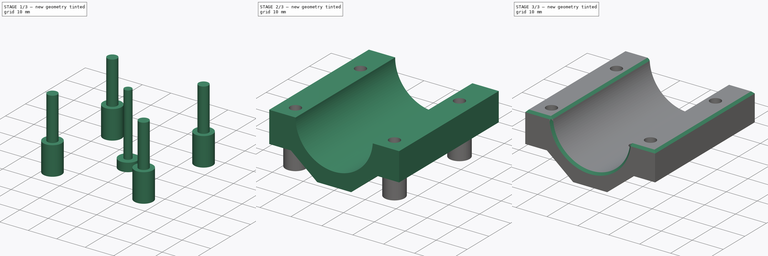
[diagram: build sequence overview — one tinted view per stage of 3, left to right]
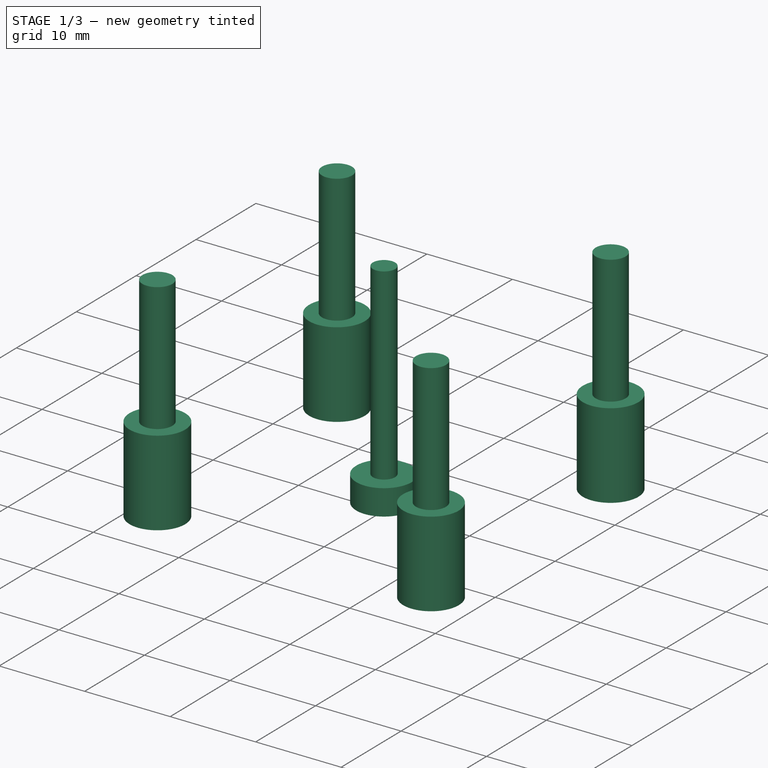
[diagram: stage 1 of 3 — iso view after this stage's code; geometry added in this stage tinted green]
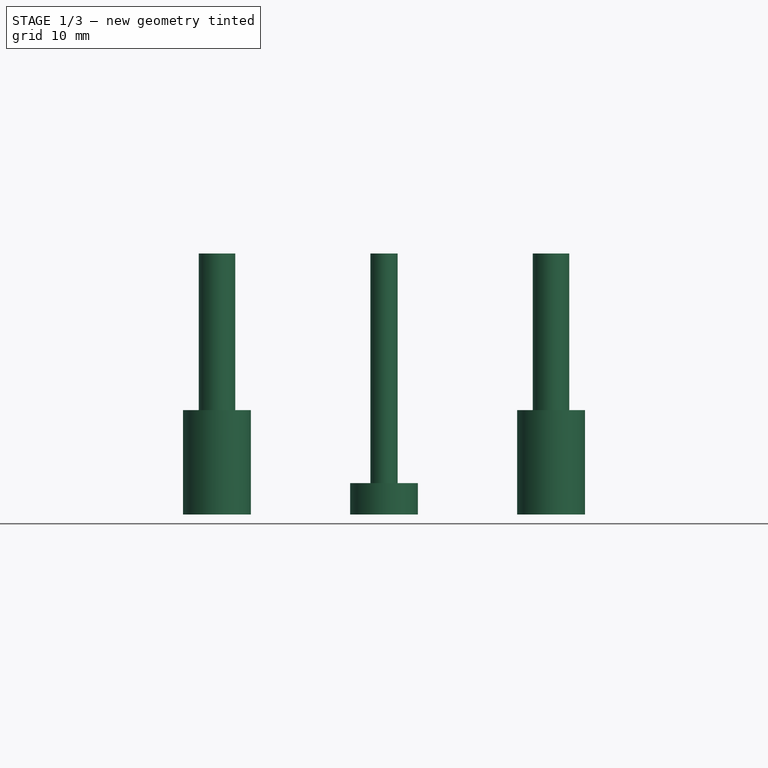
[diagram: stage 1 of 3 — front view after this stage's code; geometry added in this stage tinted green]
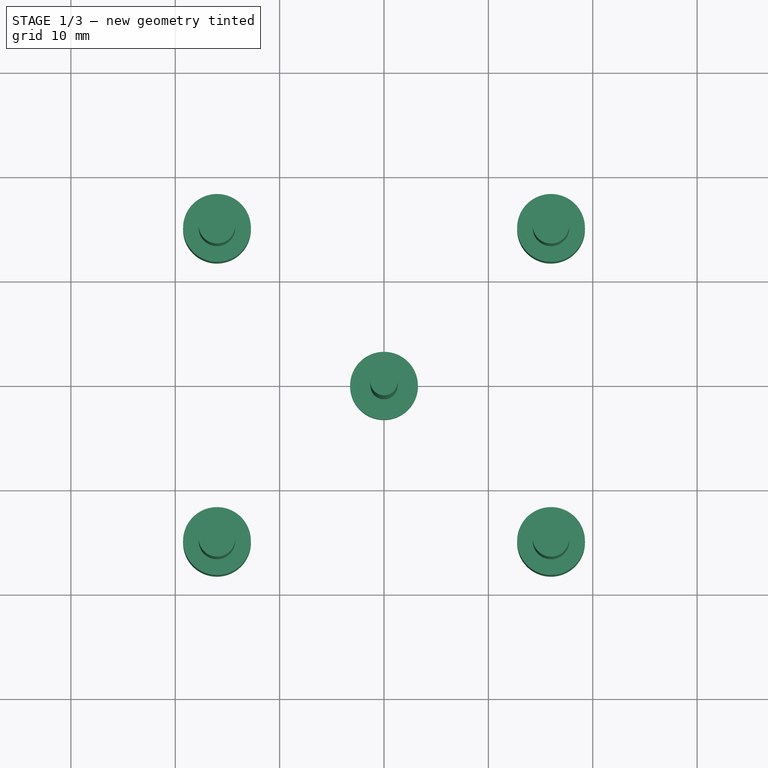
[diagram: stage 1 of 3 — top view after this stage's code; geometry added in this stage tinted green]
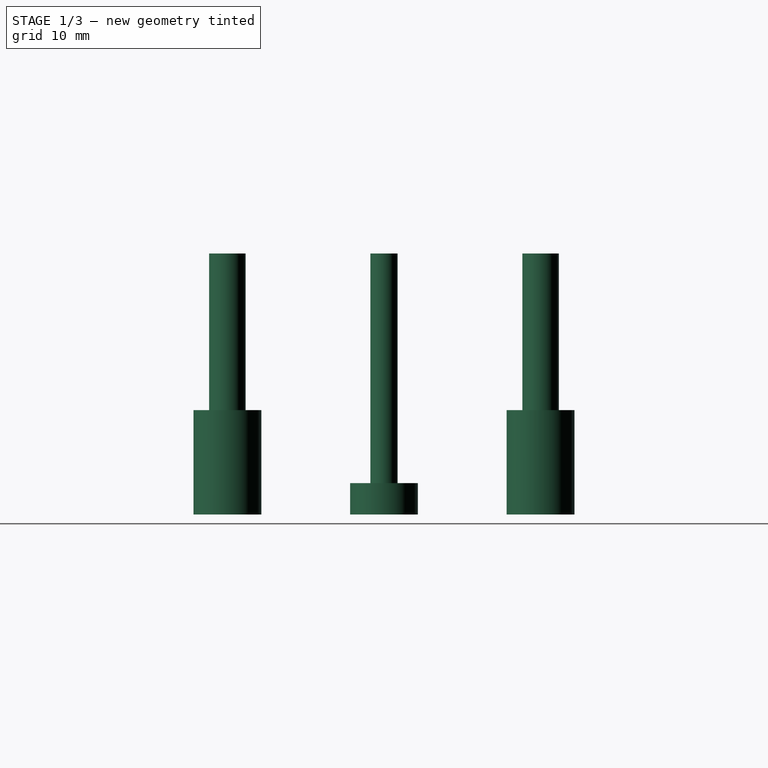
[diagram: stage 1 of 3 — right view after this stage's code; geometry added in this stage tinted green]
FCSTD DOCUMENT  (FreeCAD 0.16R6698 (Git))
Label: motor_mount_bottom
License: All rights reserved
LicenseURL: http://en.wikipedia.org/wiki/All_rights_reserved
objects: Sketcher::SketchObject×4, Part::Extrusion×4, Part::Cut×3, Part::Chamfer×1
note: 12 computed .brp shape members not serialized (recipe doc carries the construction recipe); baked Part::Feature solids carry a one-line shape summary decoded from their .brp

FEATURE [Part::Extrusion] Extrude001
  Base = -> Sketch007
  Dir = (0,0,25)
  Solid = true
FEATURE [Sketcher::SketchObject] Sketch008
  sketch-geometry (8):
    g0: LineSegment [constr] StartX=-16 StartY=35 StartZ=0 EndX=16 EndY=35 EndZ=0
    g1: LineSegment [constr] StartX=16 StartY=35 StartZ=0 EndX=16 EndY=5 EndZ=0
    g2: LineSegment [constr] StartX=16 StartY=5 StartZ=0 EndX=-16 EndY=5 EndZ=0
    g3: LineSegment [constr] StartX=-16 StartY=5 StartZ=0 EndX=-16 EndY=35 EndZ=0
    g4: Circle CenterX=-16 CenterY=5 CenterZ=0 NormalX=0 NormalY=0 NormalZ=1 Radius=3.25
    g5: Circle CenterX=16 CenterY=5 CenterZ=0 NormalX=0 NormalY=0 NormalZ=1 Radius=3.25
    g6: Circle CenterX=-16 CenterY=35 CenterZ=0 NormalX=0 NormalY=0 NormalZ=1 Radius=3.25
    g7: Circle CenterX=16 CenterY=35 CenterZ=0 NormalX=0 NormalY=0 NormalZ=1 Radius=3.25
  constraints (20):
    c: Coincident(g0,g1)
    c: Coincident(g1,g2)
    c: Coincident(g2,g3)
    c: Coincident(g3,g0)
    c: Horizontal(g0)
    c: Horizontal(g2)
    c: Vertical(g1)
    c: Vertical(g3)
    c: Symmetric(g2,g1,g-2)
    c: DistanceY(g1,g1) = 30
    c: DistanceX(g0,g0) = 32
    c: DistanceY(g-1,g1) = 5
    c: Coincident(g5,g1)
    c: Coincident(g6,g0)
    c: Coincident(g7,g0)
    c: Equal(g6,g4)
    c: Equal(g4,g5)
    c: Equal(g5,g7)
    c: Radius(g4) = 3.25
    c: Coincident(g4,g2)
FEATURE [Part::Extrusion] Extrude002
  Base = -> Sketch008
  Dir = (0,0,10)
  Solid = true
FEATURE [Sketcher::SketchObject] Sketch009
  sketch-geometry (7):
    g0: LineSegment [constr] StartX=-16 StartY=35 StartZ=0 EndX=16 EndY=35 EndZ=0
    g1: LineSegment [constr] StartX=16 StartY=35 StartZ=0 EndX=16 EndY=5 EndZ=0
    g2: LineSegment [constr] StartX=16 StartY=5 StartZ=0 EndX=-16 EndY=5 EndZ=0
    g3: LineSegment [constr] StartX=-16 StartY=5 StartZ=0 EndX=-16 EndY=35 EndZ=0
    g4: Circle CenterX=0 CenterY=20 CenterZ=0 NormalX=0 NormalY=0 NormalZ=1 Radius=3.25
    g5: LineSegment [constr] StartX=16 StartY=35 StartZ=0 EndX=0 EndY=20 EndZ=0
    g6: LineSegment [constr] StartX=0 StartY=20 StartZ=0 EndX=16 EndY=5 EndZ=0
  constraints (19):
    c: Coincident(g0,g1)
    c: Coincident(g1,g2)
    c: Coincident(g2,g3)
    c: Coincident(g3,g0)
    c: Horizontal(g0)
    c: Horizontal(g2)
    c: Vertical(g1)
    c: Vertical(g3)
    c: Symmetric(g2,g1,g-2)
    c: DistanceY(g1,g1) = 30
    c: DistanceX(g0,g0) = 32
    c: DistanceY(g-1,g1) = 5
    c: PointOnObject(g4,g-2)
    c: Coincident(g0,g5)
    c: Coincident(g5,g4)
    c: Coincident(g5,g6)
    c: Coincident(g6,g1)
    c: Equal(g6,g5)
    c: Radius(g4) = 3.25
FEATURE [Part::Extrusion] Extrude003
  Base = -> Sketch009
  Dir = (0,0,3)
  Solid = true
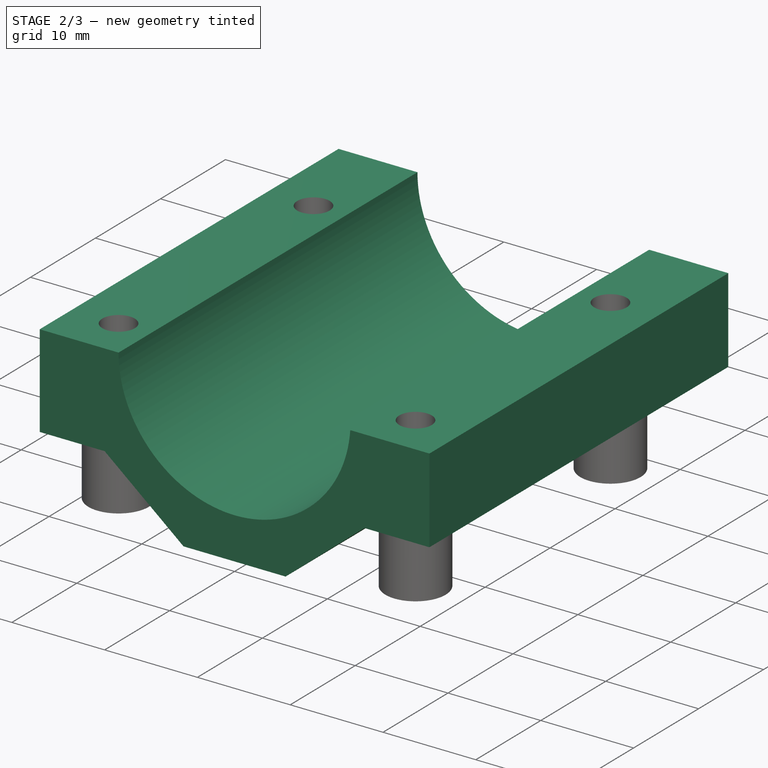
[diagram: stage 2 of 3 — iso view after this stage's code; geometry added in this stage tinted green]
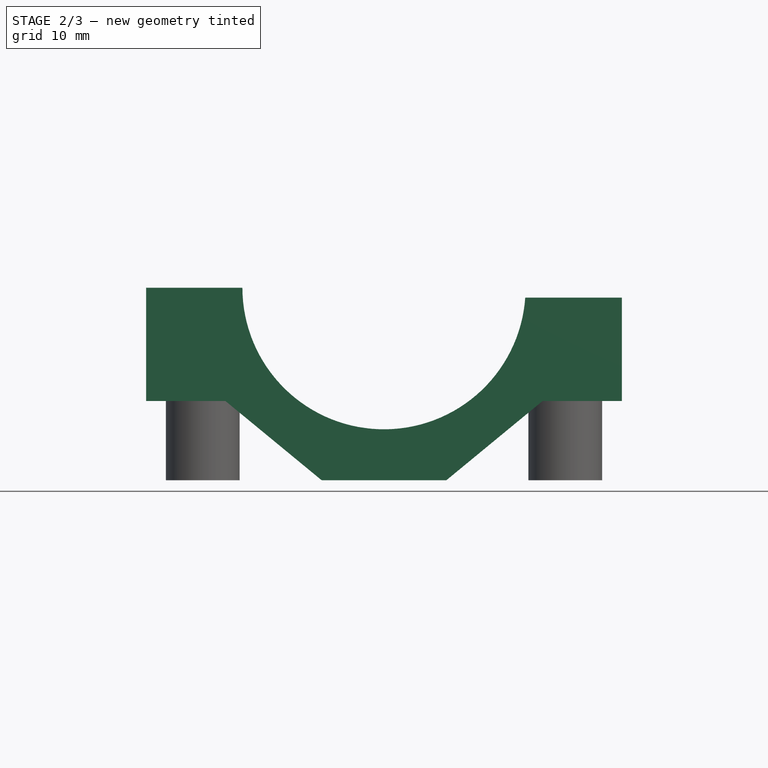
[diagram: stage 2 of 3 — front view after this stage's code; geometry added in this stage tinted green]
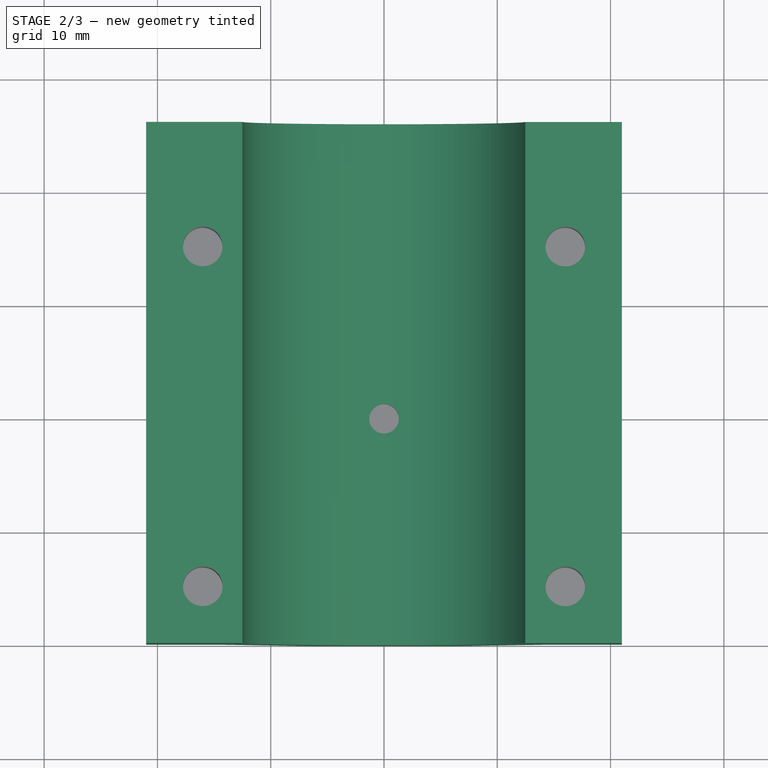
[diagram: stage 2 of 3 — top view after this stage's code; geometry added in this stage tinted green]
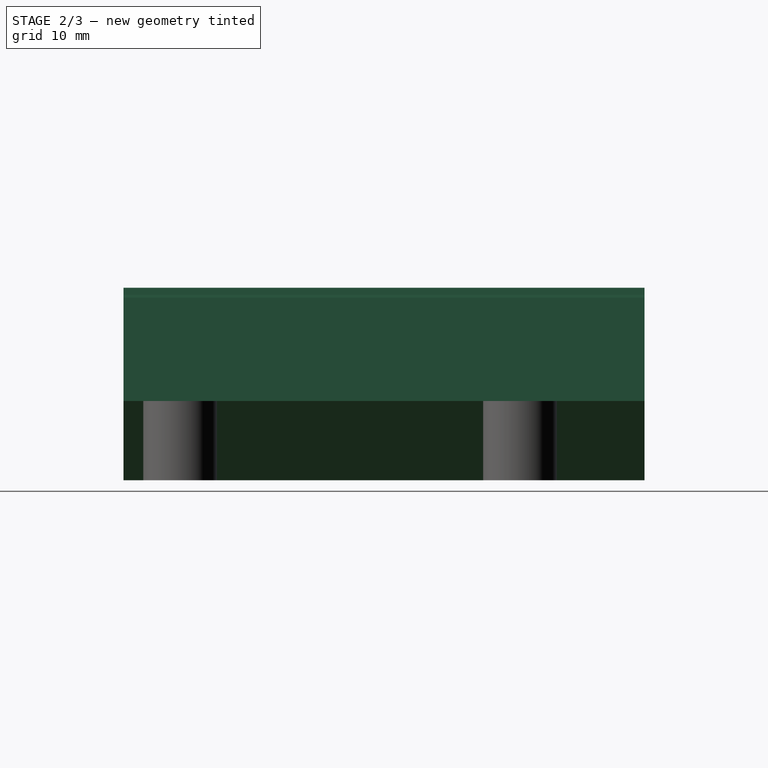
[diagram: stage 2 of 3 — right view after this stage's code; geometry added in this stage tinted green]
FEATURE [Sketcher::SketchObject] Sketch003
  Placement = pos=(0,0,0) rot=(1,0,0;1.5708rad)
  sketch-geometry (11):
    g0: LineSegment StartX=21 StartY=16.128 StartZ=0 EndX=21 EndY=7 EndZ=0
    g1: ArcOfCircle CenterX=0 CenterY=17 CenterZ=0 NormalX=0 NormalY=0 NormalZ=1 Radius=12.5 StartAngle=3.14159 EndAngle=6.21337
    g2: LineSegment StartX=-21 StartY=17 StartZ=0 EndX=-12.5 EndY=17 EndZ=0
    g3: LineSegment StartX=12.4696 StartY=16.128 StartZ=0 EndX=21 EndY=16.128 EndZ=0
    g4: LineSegment StartX=-5.5 StartY=0 StartZ=0 EndX=-14 EndY=7 EndZ=0
    g5: LineSegment StartX=-14 StartY=7 StartZ=0 EndX=-21 EndY=7 EndZ=0
    g6: LineSegment StartX=-21 StartY=7 StartZ=0 EndX=-21 EndY=17 EndZ=0
    g7: LineSegment StartX=-5.5 StartY=0 StartZ=0 EndX=5.5 EndY=0 EndZ=0
    g8: LineSegment StartX=5.5 StartY=0 StartZ=0 EndX=14 EndY=7 EndZ=0
    g9: LineSegment StartX=14 StartY=7 StartZ=0 EndX=21 EndY=7 EndZ=0
    g10: LineSegment [constr] StartX=-14 StartY=7 StartZ=0 EndX=14 EndY=7 EndZ=0
  constraints (33):
    c: Vertical(g0)
    c: PointOnObject(g4,g-1)
    c: PointOnObject(g1,g-2)
    c: Radius(g1) = 12.5
    c: Angle(g1) = 3.07178
    c: Coincident(g2,g1)
    c: Horizontal(g2)
    c: DistanceY(g4,g2) = 17
    c: Coincident(g3,g1)
    c: Coincident(g3,g0)
    c: Horizontal(g3)
    c: DistanceX(g2,g2) = 8.5
    c: Coincident(g4,g5)
    c: Horizontal(g5)
    c: Coincident(g5,g6)
    c: Vertical(g6)
    c: Coincident(g6,g2)
    c: Coincident(g4,g7)
    c: Horizontal(g7)
    c: Coincident(g7,g8)
    c: Coincident(g8,g9)
    c: Horizontal(g9)
    c: Coincident(g9,g0)
    c: Symmetric(g4,g7,g-1)
    c: Equal(g4,g8)
    c: Equal(g5,g9)
    c: DistanceX(g7,g7) = 11
    c: DistanceY(g6,g6) = 10
    c: DistanceX(g5,g5) = 7
    c: Coincident(g10,g4)
    c: Coincident(g10,g8)
    c: Horizontal(g10)
    c: PointOnObject(g1,g2)
FEATURE [Sketcher::SketchObject] Sketch007
  sketch-geometry (11):
    g0: LineSegment [constr] StartX=-16 StartY=35 StartZ=0 EndX=16 EndY=35 EndZ=0
    g1: LineSegment [constr] StartX=16 StartY=35 StartZ=0 EndX=16 EndY=5 EndZ=0
    g2: LineSegment [constr] StartX=16 StartY=5 StartZ=0 EndX=-16 EndY=5 EndZ=0
    g3: LineSegment [constr] StartX=-16 StartY=5 StartZ=0 EndX=-16 EndY=35 EndZ=0
    g4: Circle CenterX=-16 CenterY=5 CenterZ=0 NormalX=0 NormalY=0 NormalZ=1 Radius=1.75
    g5: Circle CenterX=16 CenterY=5 CenterZ=0 NormalX=0 NormalY=0 NormalZ=1 Radius=1.75
    g6: Circle CenterX=-16 CenterY=35 CenterZ=0 NormalX=0 NormalY=0 NormalZ=1 Radius=1.75
    g7: Circle CenterX=16 CenterY=35 CenterZ=0 NormalX=0 NormalY=0 NormalZ=1 Radius=1.75
    g8: Circle CenterX=0 CenterY=20 CenterZ=0 NormalX=0 NormalY=0 NormalZ=1 Radius=1.3
    g9: LineSegment [constr] StartX=16 StartY=35 StartZ=0 EndX=0 EndY=20 EndZ=0
    g10: LineSegment [constr] StartX=0 StartY=20 StartZ=0 EndX=16 EndY=5 EndZ=0
  constraints (27):
    c: Coincident(g0,g1)
    c: Coincident(g1,g2)
    c: Coincident(g2,g3)
    c: Coincident(g3,g0)
    c: Horizontal(g0)
    c: Horizontal(g2)
    c: Vertical(g1)
    c: Vertical(g3)
    c: Symmetric(g2,g1,g-2)
    c: DistanceY(g1,g1) = 30
    c: DistanceX(g0,g0) = 32
    c: DistanceY(g-1,g1) = 5
    c: Coincident(g5,g1)
    c: Coincident(g6,g0)
    c: Coincident(g7,g0)
    c: Equal(g6,g4)
    c: Equal(g4,g5)
    c: Equal(g5,g7)
    c: Radius(g4) = 1.75
    c: Coincident(g4,g2)
    c: PointOnObject(g8,g-2)
    c: Coincident(g0,g9)
    c: Coincident(g9,g8)
    c: Coincident(g9,g10)
    c: Coincident(g10,g1)
    c: Equal(g9,g10)
    c: Radius(g8) = 1.3
FEATURE [Part::Extrusion] Extrude
  Base = -> Sketch003
  Dir = (0,46,0)
  Solid = true
FEATURE [Part::Cut] Cut
  Base = -> Extrude
  Tool = -> Extrude001
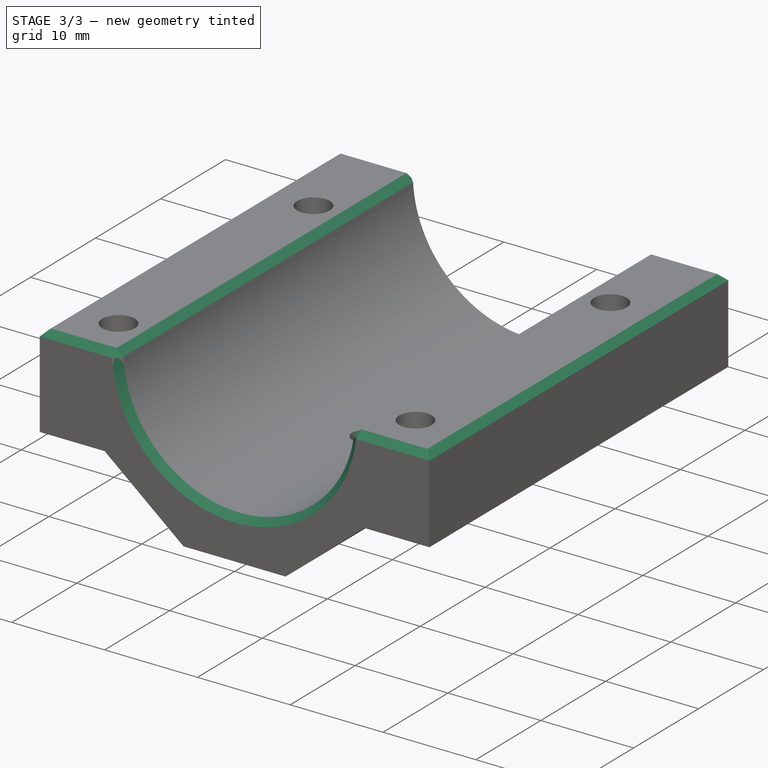
[diagram: stage 3 of 3 — iso view after this stage's code; geometry added in this stage tinted green]
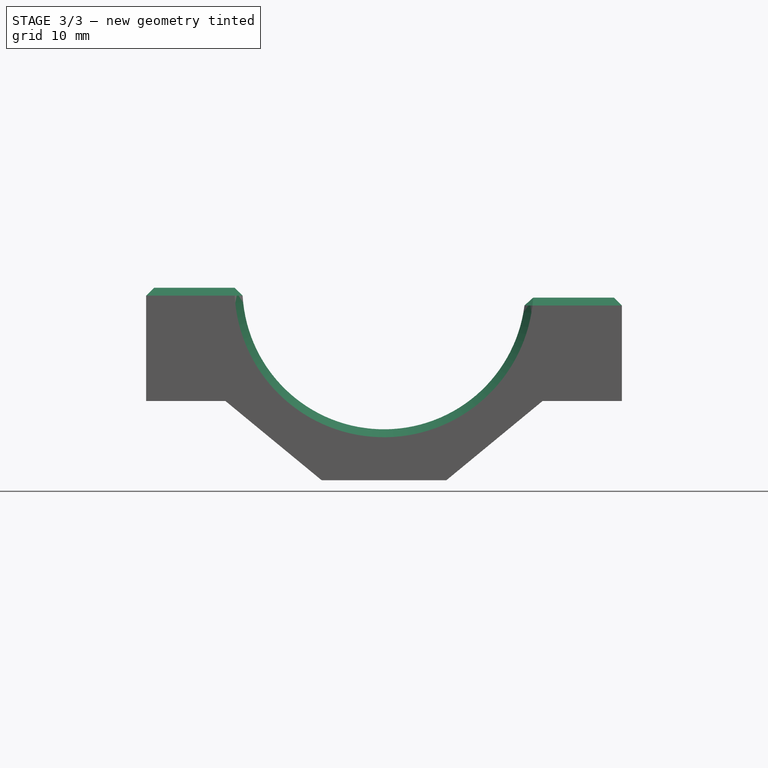
[diagram: stage 3 of 3 — front view after this stage's code; geometry added in this stage tinted green]
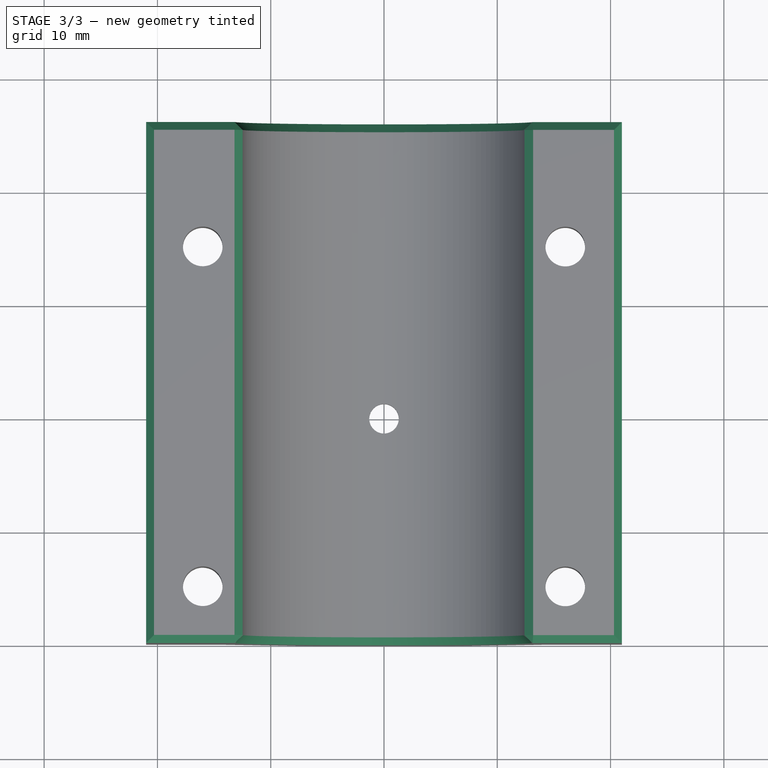
[diagram: stage 3 of 3 — top view after this stage's code; geometry added in this stage tinted green]
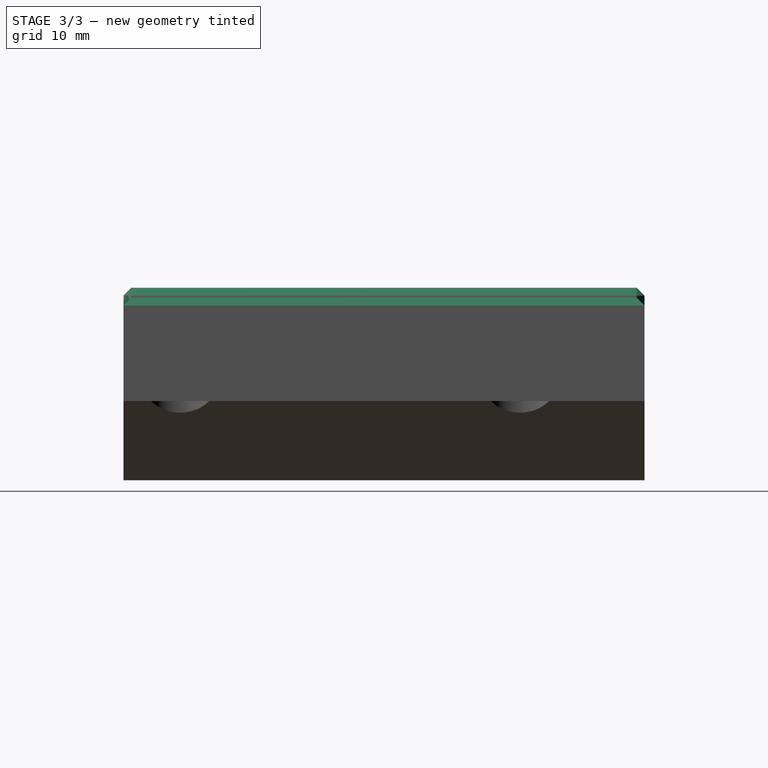
[diagram: stage 3 of 3 — right view after this stage's code; geometry added in this stage tinted green]
FEATURE [Part::Cut] Cut001
  Base = -> Cut
  Tool = -> Extrude002
FEATURE [Part::Cut] Cut002
  Base = -> Cut001
  Tool = -> Extrude003
FEATURE [Part::Chamfer] Chamfer
  Base = -> Cut002
  Edges = 10 edges r=0.7: [Edge13,Edge14,Edge15,Edge29,Edge30,Edge31,Edge38,Edge39,Edge42,Edge45]
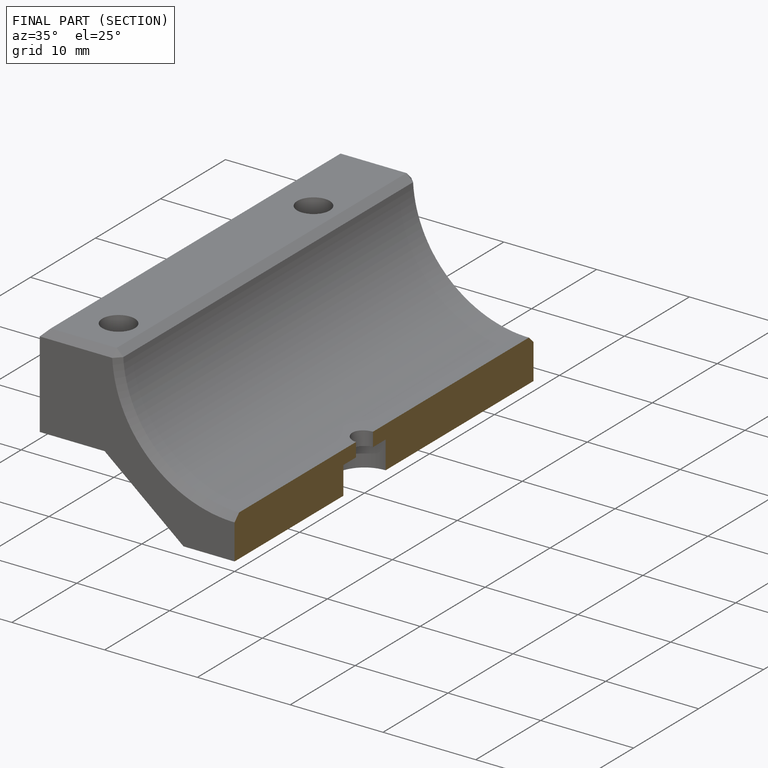
[diagram: finished part — half-section view (interior)]
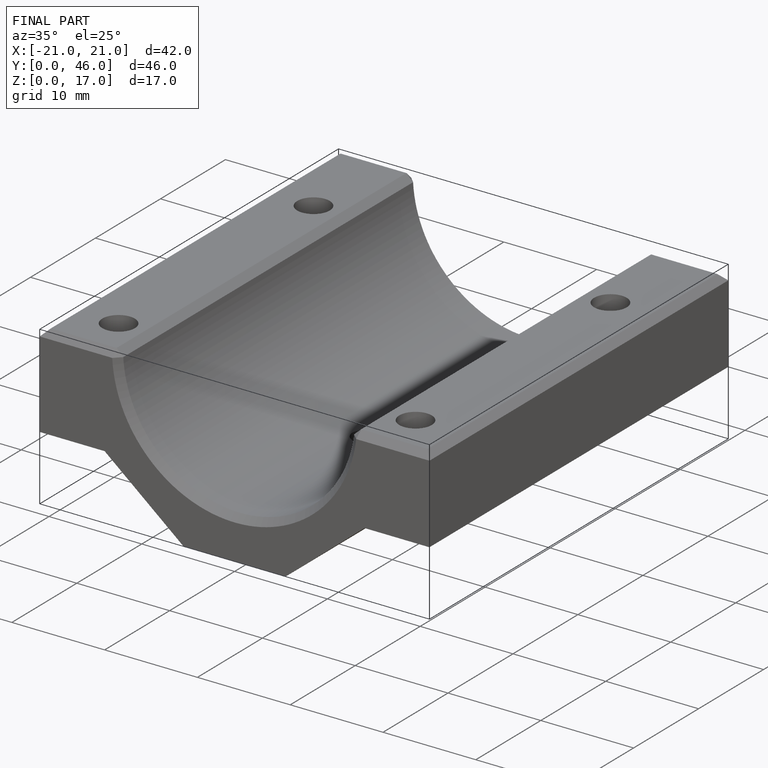
[diagram: finished part — iso view with bounding-box wireframe]
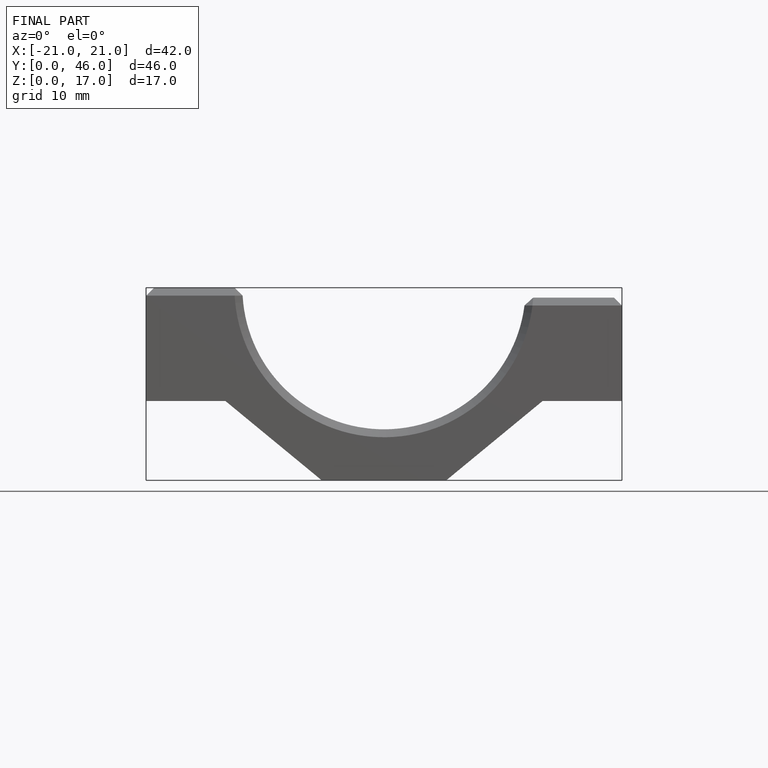
[diagram: finished part — front view with bounding-box wireframe]
